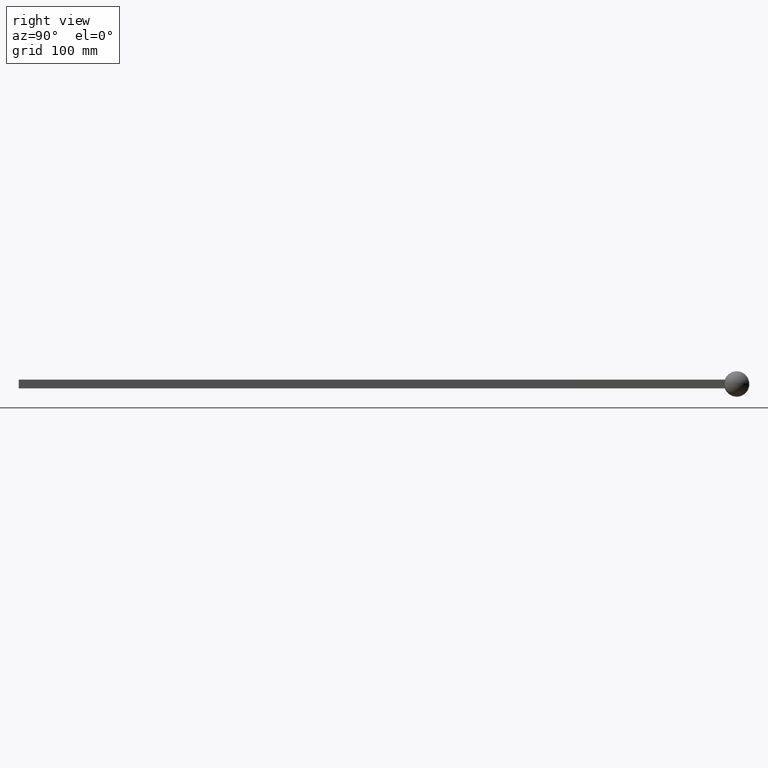
[diagram: clean part render]
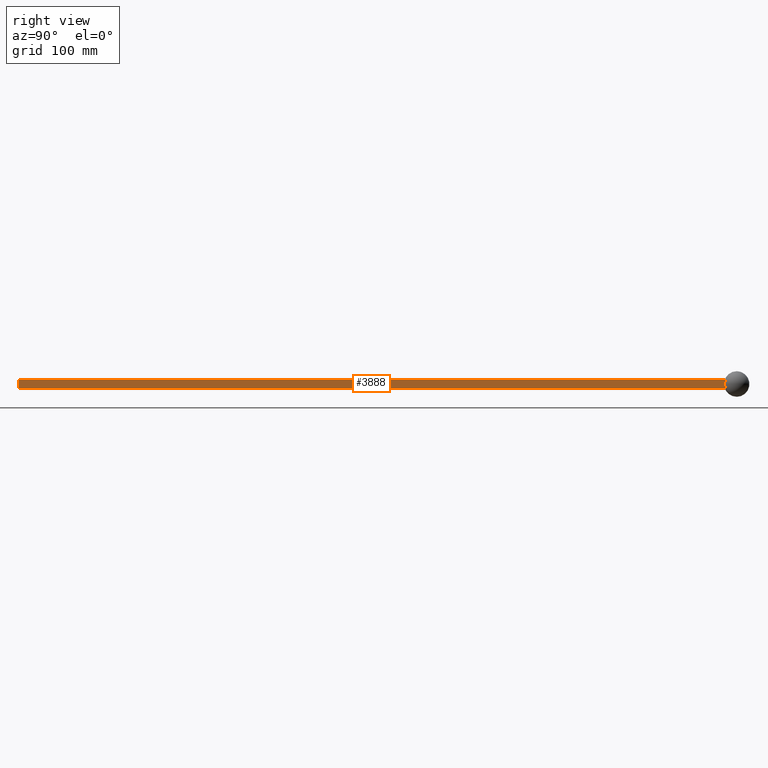
[diagram: same view with one face highlighted and labeled with its STEP entity id]
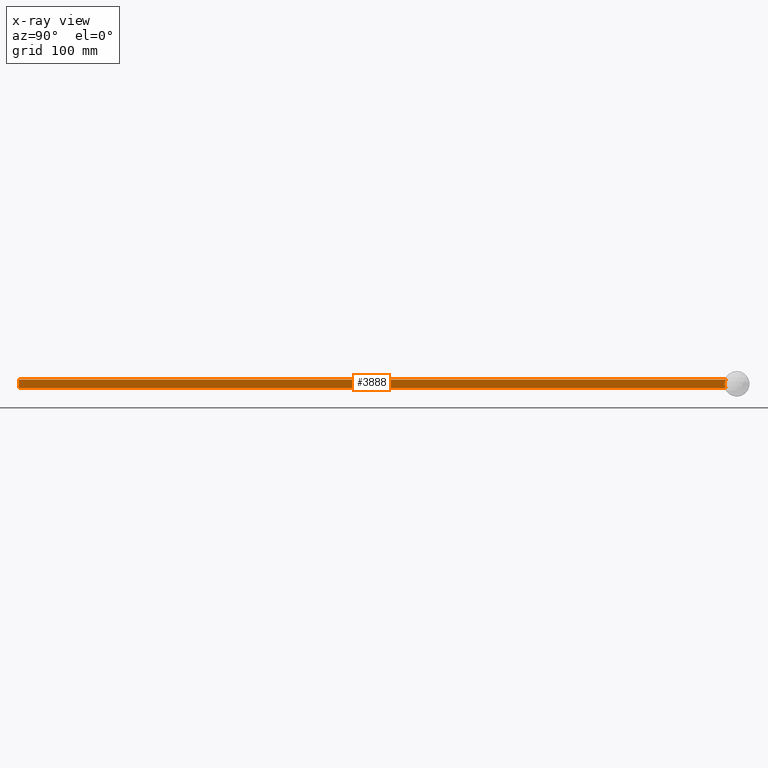
[diagram: x-ray of the same camera — body ghosted, the highlighted face saturated]
A machine part, right view. The second image highlights one B-rep face of the part: STEP entity #3888.
The next image is the same camera in x-ray: the body ghosted, the highlighted face saturated — about 0% of this face is hidden behind the body in this view.
In plain terms, the highlighted planar face has unit normal (1, 0, 0).
Its self-contained STEP definition (entity closure, byte-faithful):
#918 = ORIENTED_EDGE ( 'NONE', *, *, #8496, .F. ) ;
#1397 = CARTESIAN_POINT ( 'NONE',  ( 6.000000000000001776, 0.000000000000000000, 6.000000000000000000 ) ) ;
#1690 = ORIENTED_EDGE ( 'NONE', *, *, #2921, .F. ) ;
#1703 = DIRECTION ( 'NONE',  ( 1.582846001853119714E-16, 0.000000000000000000, -1.000000000000000000 ) ) ;
#1838 = DIRECTION ( 'NONE',  ( 1.000000000000000000, 0.000000000000000000, 1.445602896647339410E-16 ) ) ;
#1934 = VECTOR ( 'NONE', #6397, 1000.000000000000000 ) ;
#2909 = VECTOR ( 'NONE', #3523, 1000.000000000000000 ) ;
#2921 = EDGE_CURVE ( 'NONE', #10172, #6897, #3028, .T. ) ;
#3028 = LINE ( 'NONE', #13144, #8695 ) ;
#3060 = VERTEX_POINT ( 'NONE', #6518 ) ;
#3135 = AXIS2_PLACEMENT_3D ( 'NONE', #6655, #6792, #7849 ) ;
#3523 = DIRECTION ( 'NONE',  ( -1.445602896647339163E-16, -0.000000000000000000, 1.000000000000000000 ) ) ;
#3585 = CARTESIAN_POINT ( 'NONE',  ( 6.000000000000001776, 1000.002000000000066, 6.000000000000000000 ) ) ;
#3886 = LINE ( 'NONE', #3585, #1934 ) ;
#3888 = ADVANCED_FACE ( 'NONE', ( #12170 ), #10961, .T. ) ;
#4648 = EDGE_LOOP ( 'NONE', ( #8802, #4882, #918, #1690 ) ) ;
#4882 = ORIENTED_EDGE ( 'NONE', *, *, #7990, .T. ) ;
#5580 = AXIS2_PLACEMENT_3D ( 'NONE', #8063, #1838, #1703 ) ;
#6397 = DIRECTION ( 'NONE',  ( 0.000000000000000000, -1.000000000000000000, 0.000000000000000000 ) ) ;
#6518 = CARTESIAN_POINT ( 'NONE',  ( 6.000000000000001776, 0.000000000000000000, 6.000000000000000000 ) ) ;
#6655 = CARTESIAN_POINT ( 'NONE',  ( 6.000000000000001776, 1000.002000000000066, 6.000000000000000000 ) ) ;
#6792 = DIRECTION ( 'NONE',  ( 1.000000000000000000, 0.000000000000000000, 1.445602896647339410E-16 ) ) ;
#6870 = EDGE_CURVE ( 'NONE', #7180, #10172, #11685, .T. ) ;
#6897 = VERTEX_POINT ( 'NONE', #11213 ) ;
#7180 = VERTEX_POINT ( 'NONE', #10406 ) ;
#7849 = DIRECTION ( 'NONE',  ( 1.445602896647339410E-16, 0.000000000000000000, -1.000000000000000000 ) ) ;
#7990 = EDGE_CURVE ( 'NONE', #7180, #3060, #3886, .T. ) ;
#8063 = CARTESIAN_POINT ( 'NONE',  ( 6.000000000000002665, 982.5000000000001137, 8.673617379884041389E-16 ) ) ;
#8496 = EDGE_CURVE ( 'NONE', #6897, #3060, #11816, .T. ) ;
#8695 = VECTOR ( 'NONE', #11144, 1000.000000000000000 ) ;
#8802 = ORIENTED_EDGE ( 'NONE', *, *, #6870, .F. ) ;
#10172 = VERTEX_POINT ( 'NONE', #11690 ) ;
#10406 = CARTESIAN_POINT ( 'NONE',  ( 6.000000000000001776, 967.1947721349862377, 6.000000000000000000 ) ) ;
#10961 = PLANE ( 'NONE',  #3135 ) ;
#11144 = DIRECTION ( 'NONE',  ( 0.000000000000000000, -1.000000000000000000, 0.000000000000000000 ) ) ;
#11213 = CARTESIAN_POINT ( 'NONE',  ( 6.000000000000003553, 0.000000000000000000, -6.000000000000001776 ) ) ;
#11685 = CIRCLE ( 'NONE', #5580, 16.43928222277350315 ) ;
#11690 = CARTESIAN_POINT ( 'NONE',  ( 6.000000000000003553, 967.1947721349862377, -6.000000000000001776 ) ) ;
#11816 = LINE ( 'NONE', #1397, #2909 ) ;
#12170 = FACE_OUTER_BOUND ( 'NONE', #4648, .T. ) ;
#13144 = CARTESIAN_POINT ( 'NONE',  ( 6.000000000000003553, 1000.002000000000066, -6.000000000000001776 ) ) ;